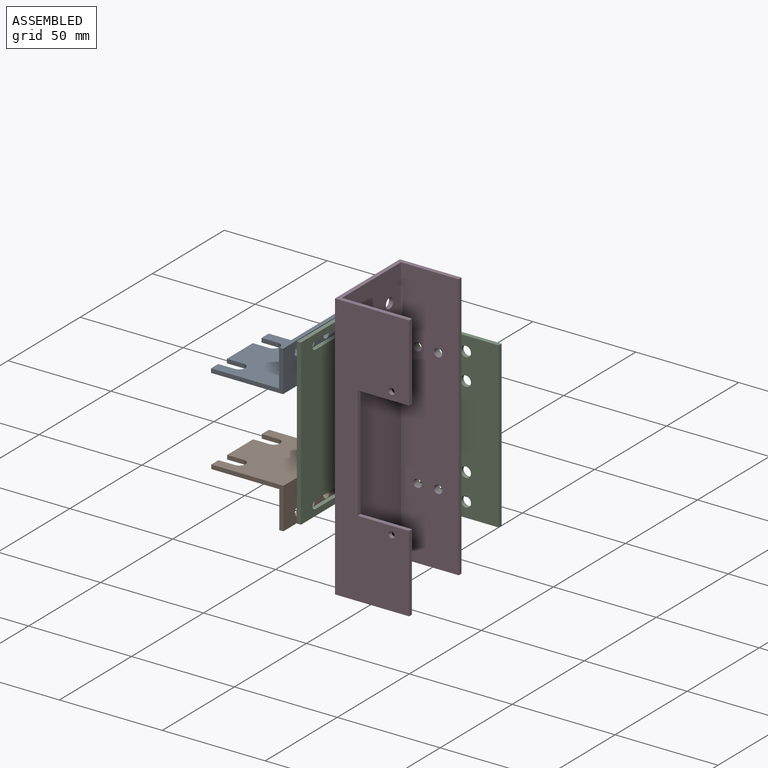
[diagram: assembled view]
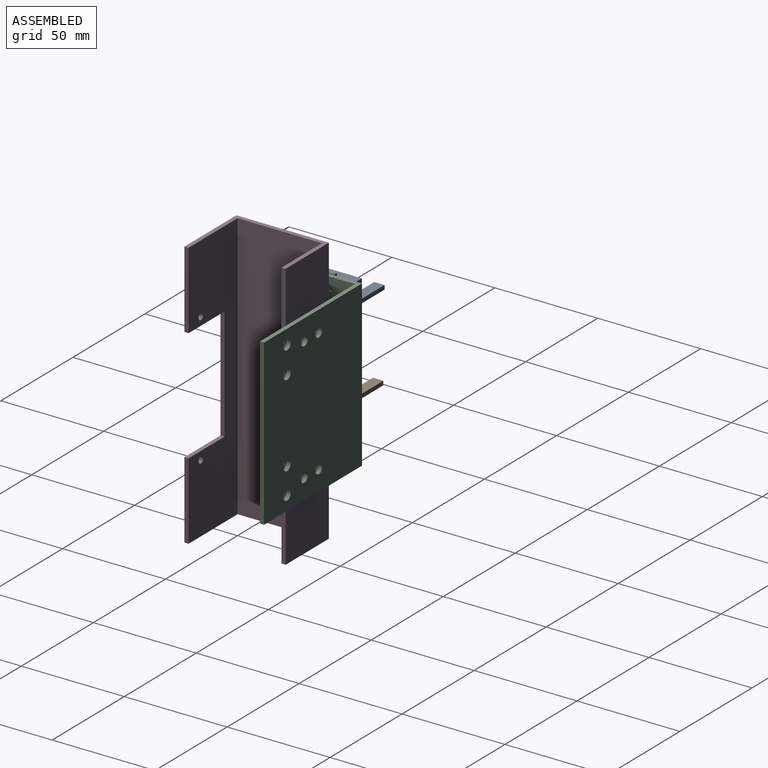
[diagram: assembled view, second angle]
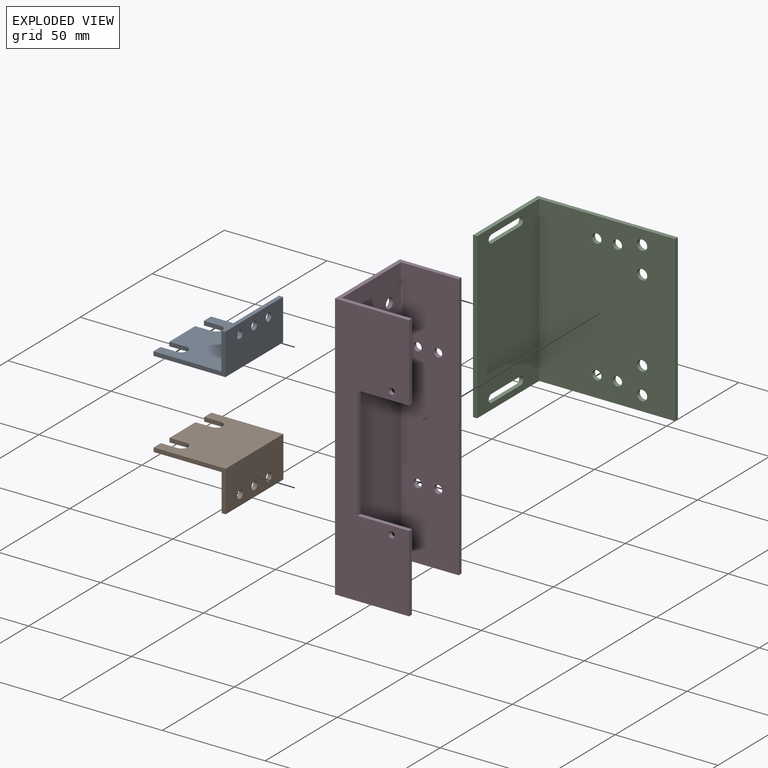
[diagram: exploded view]
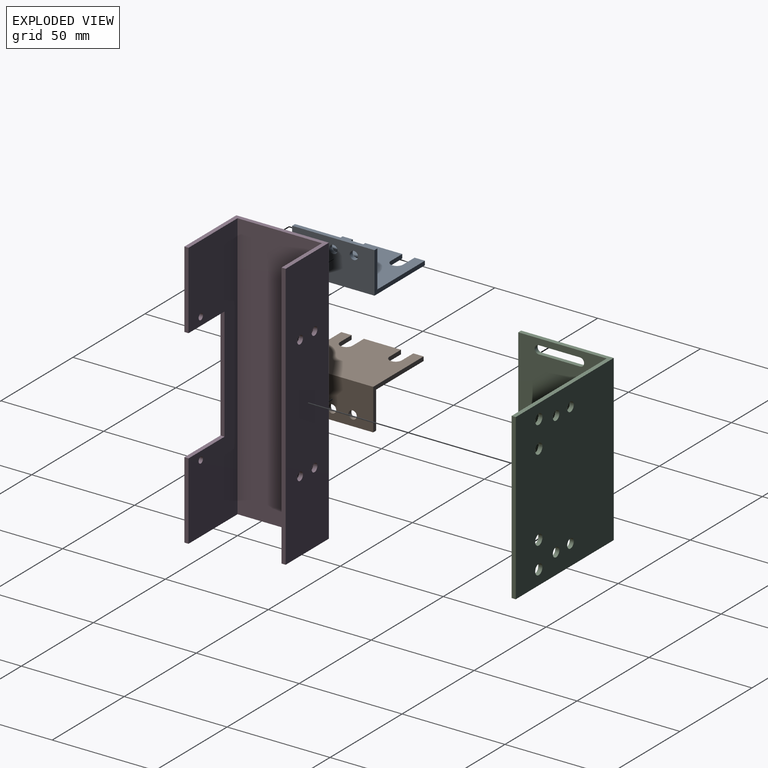
[diagram: exploded view, second angle]
ASSEMBLY  parts=4 mates=5
PART A: 19 faces, bbox 20x40x35 mm
  f0: plane 5x2mm, normal (0,0,-1), area 10mm2, adj f2,f3,f8,f15
  f1: plane 5x2mm, normal (0,0,-1), area 10mm2, adj f2,f3,f7,f13
  f2: plane 40x35mm, normal (-1,0,0), area 1275.7mm2, adj f0,f1,f4,f6,f7,f8,f13,f14
  f3: plane 40x33mm, normal (1,0,0), area 1195.7mm2, adj f0,f1,f4,f5,f7,f8,f13,f14
  f4: plane 18x2mm, normal (0,0,-1), area 36mm2, adj f2,f3,f14,f16
  f5: plane 40x18mm, normal (0,0,-1), area 682.3mm2, adj f3,f7,f8,f9,f10,f11,f12
  f6: plane 40x20mm, normal (0,0,1), area 762.3mm2, adj f2,f7,f8,f9,f10,f11,f12
  f7: plane 35x20mm, normal (0,-1,0), area 106mm2, adj f1,f2,f3,f5,f6,f9
  f8: plane 35x20mm, normal (0,1,0), area 106mm2, adj f0,f2,f3,f5,f6,f9
  f9: plane 40x2mm, normal (1,0,0), area 80mm2, adj f5,f6,f7,f8
  f10: cylinder r=2mm len=4mm, axis (0,0,1), area 25.1mm2, adj f5,f6
  f11: cylinder r=2mm len=4mm, axis (0,0,1), area 25.1mm2, adj f5,f6
  f12: cylinder r=2mm len=4mm, axis (0,0,1), area 25.1mm2, adj f5,f6
  f13: plane 8x2mm, normal (0,1,0), area 16mm2, adj f1,f2,f3,f17
  f14: plane 8x2mm, normal (0,-1,0), area 16mm2, adj f2,f3,f4,f17
  f15: plane 8x2mm, normal (0,-1,0), area 16mm2, adj f0,f2,f3,f18
  f16: plane 8x2mm, normal (0,1,0), area 16mm2, adj f2,f3,f4,f18
  f17: cylinder r=3mm len=6mm, axis (-1,0,0), area 18.8mm2, adj f2,f3,f13,f14
  f18: cylinder r=3mm len=6mm, axis (-1,0,0), area 18.8mm2, adj f2,f3,f15,f16
PART B: same geometry as A
PART C: 24 faces, bbox 68x45x80 mm
  f0: plane 80x45mm, normal (-1,0,0), area 3414.9mm2, adj f2,f5,f6,f7,f12,f13,f14,f15
  f1: plane 80x43mm, normal (1,0,0), area 3254.9mm2, adj f2,f3,f6,f7,f12,f13,f14,f15
  f2: plane 80x2mm, normal (0,-1,0), area 160mm2, adj f0,f1,f6,f7
  f3: plane 80x66mm, normal (0,-1,0), area 5137.8mm2, adj f1,f4,f6,f7,f8,f9,f10,f11
  f4: plane 80x2mm, normal (1,0,0), area 160mm2, adj f3,f5,f6,f7
  f5: plane 80x68mm, normal (0,1,0), area 5297.8mm2, adj f0,f4,f6,f7,f8,f9,f10,f11
  f6: plane 68x45mm, normal (0,0,1), area 222mm2, adj f0,f1,f2,f3,f4,f5
  f7: plane 68x45mm, normal (0,0,-1), area 222mm2, adj f0,f1,f2,f3,f4,f5
  f8: cylinder r=2.25mm len=4.5mm, axis (0,1,0), area 28.3mm2, adj f3,f5
  f9: cylinder r=2.25mm len=4.5mm, axis (0,1,0), area 28.3mm2, adj f3,f5
  f10: cylinder r=2.25mm len=4.5mm, axis (0,1,0), area 28.3mm2, adj f3,f5
  f11: cylinder r=2.25mm len=4.5mm, axis (0,1,0), area 28.3mm2, adj f3,f5
  f12: plane 20x2mm, normal (0,0,-1), area 40mm2, adj f0,f1,f13,f15
  f13: cylinder r=2mm len=4mm, axis (-1,0,0), area 12.6mm2, adj f0,f1,f12,f14
  f14: plane 20x2mm, normal (0,0,1), area 40mm2, adj f0,f1,f13,f15
  f15: cylinder r=2mm len=4mm, axis (-1,0,0), area 12.6mm2, adj f0,f1,f12,f14
  f16: plane 20x2mm, normal (0,0,-1), area 40mm2, adj f0,f1,f17,f19
  f17: cylinder r=2mm len=4mm, axis (-1,0,0), area 12.6mm2, adj f0,f1,f16,f18
  f18: plane 20x2mm, normal (0,0,1), area 40mm2, adj f0,f1,f17,f19
  f19: cylinder r=2mm len=4mm, axis (-1,0,0), area 12.6mm2, adj f0,f1,f16,f18
  f20: cylinder r=2.5mm len=5mm, axis (0,1,0), area 31.4mm2, adj f3,f5
  f21: cylinder r=2.5mm len=5mm, axis (0,1,0), area 31.4mm2, adj f3,f5
  f22: cylinder r=2.5mm len=5mm, axis (0,1,0), area 31.4mm2, adj f3,f5
  f23: cylinder r=2.5mm len=5mm, axis (0,1,0), area 31.4mm2, adj f3,f5
PART D: 22 faces, bbox 36x130x45 mm
  f0: plane 130x36mm, normal (0,0,-1), area 3290.9mm2, adj f4,f5,f7,f9,f10,f11,f12,f13
  f1: plane 130x34mm, normal (0,0,1), area 3030.9mm2, adj f4,f5,f8,f9,f10,f11,f12,f13
  f2: plane 130x30mm, normal (0,0,1), area 3849.7mm2, adj f6,f7,f16,f17,f18,f19,f20,f21
  f3: plane 130x28mm, normal (0,0,-1), area 3589.7mm2, adj f6,f8,f16,f17,f18,f19,f20,f21
  f4: plane 37.5x2mm, normal (1,0,0), area 75mm2, adj f0,f1,f9,f20
  f5: plane 37.5x2mm, normal (1,0,0), area 75mm2, adj f0,f1,f10,f21
  f6: plane 130x2mm, normal (1,0,0), area 260mm2, adj f2,f3,f20,f21
  f7: plane 130x45mm, normal (-1,0,0), area 5810.7mm2, adj f0,f2,f14,f15,f20,f21
  f8: plane 130x41mm, normal (1,0,0), area 5290.7mm2, adj f1,f3,f14,f15,f20,f21
  f9: plane 25x2mm, normal (0,-1,0), area 50mm2, adj f0,f1,f4,f11
  f10: plane 25x2mm, normal (0,1,0), area 50mm2, adj f0,f1,f5,f11
  f11: plane 55x2mm, normal (1,0,0), area 110mm2, adj f0,f1,f9,f10
  f12: cylinder r=1.5mm len=3mm, axis (0,0,-1), area 18.8mm2, adj f0,f1
  f13: cylinder r=1.5mm len=3mm, axis (0,0,-1), area 18.8mm2, adj f0,f1
  f14: cylinder r=2.5mm len=5mm, axis (-1,0,0), area 31.4mm2, adj f7,f8
  f15: cylinder r=2.5mm len=5mm, axis (-1,0,0), area 31.4mm2, adj f7,f8
  f16: cylinder r=2mm len=4mm, axis (0,0,1), area 25.1mm2, adj f2,f3
  f17: cylinder r=2mm len=4mm, axis (0,0,1), area 25.1mm2, adj f2,f3
  f18: cylinder r=2mm len=4mm, axis (0,0,1), area 25.1mm2, adj f2,f3
  f19: cylinder r=2mm len=4mm, axis (0,0,1), area 25.1mm2, adj f2,f3
  f20: plane 45x36mm, normal (0,1,0), area 214mm2, adj f0,f1,f2,f3,f4,f6,f7,f8
  f21: plane 45x36mm, normal (0,-1,0), area 214mm2, adj f0,f1,f2,f3,f5,f6,f7,f8
PLACE A rot(axis=(-0.71,0,-0.71),180deg) t=(-69.38,-17.09,58.44)mm
PLACE B rot(axis=(0,1,0),90deg) t=(-69,22.56,18.44)mm
PLACE C t=(-33.92,-8.2,-1.62)mm
PLACE D rot(axis=(-1,0,0),90deg) t=(-13.92,-10.3,-61.62)mm
MATE parallel B.f6 <-> C.f0  axis (1,0,0) through (-34,22.56,8.44)mm
MATE slider D.f17 <-> C.f10  axis (0,1,0) through (6.08,34.7,68.38)mm
MATE slider C.f8 <-> D.f16  axis (0,1,0) through (-3.92,36.8,8.38)mm
MATE parallel D.f2 <-> C.f3  axis (0,1,0) through (1.08,34.7,38.38)mm
MATE parallel A.f6 <-> C.f0  axis (1,0,0) through (-34.38,2.91,68.19)mm
